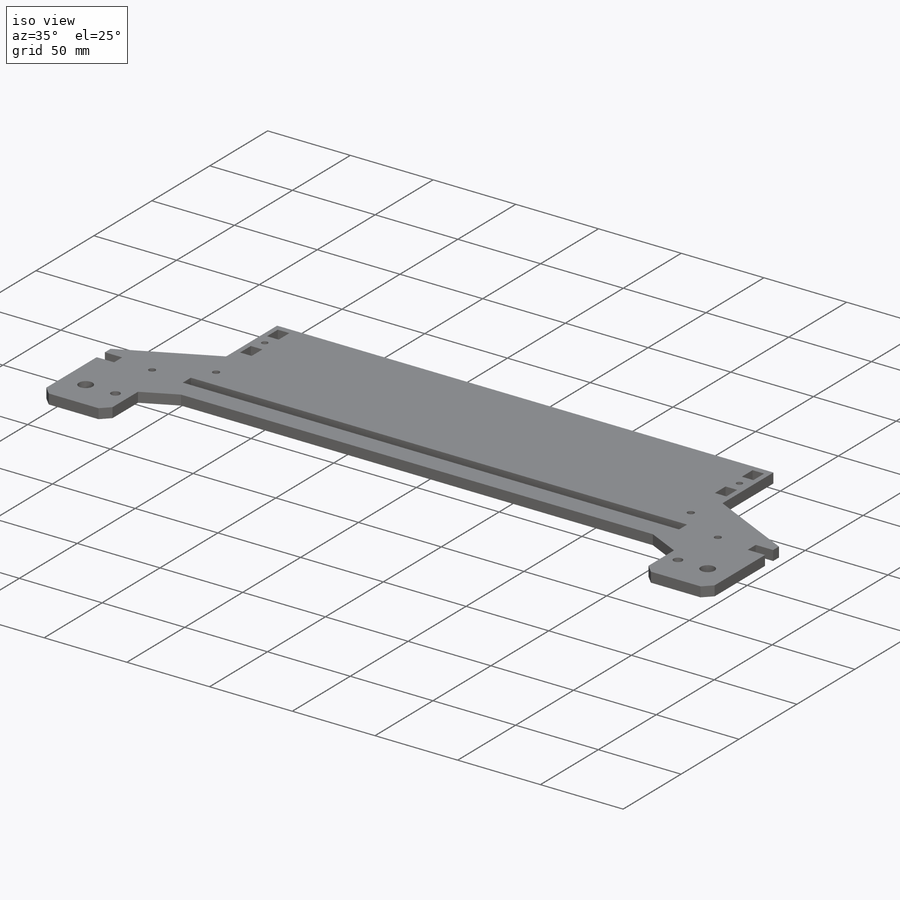
[diagram: iso view]
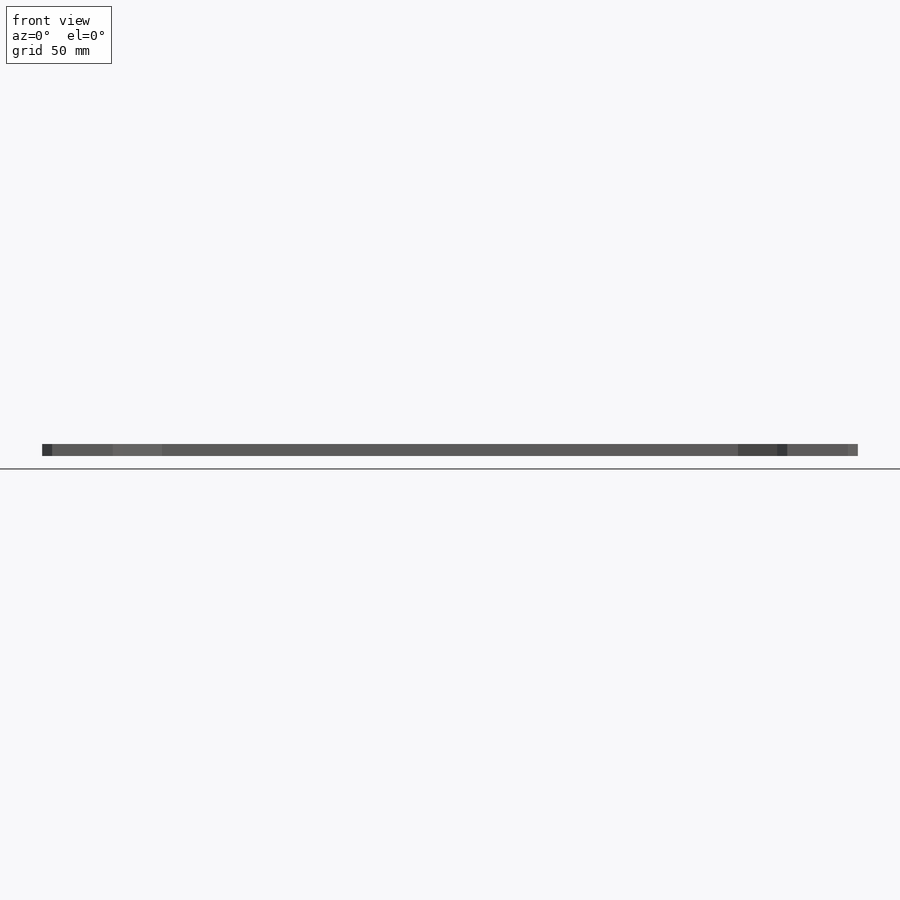
[diagram: front view]
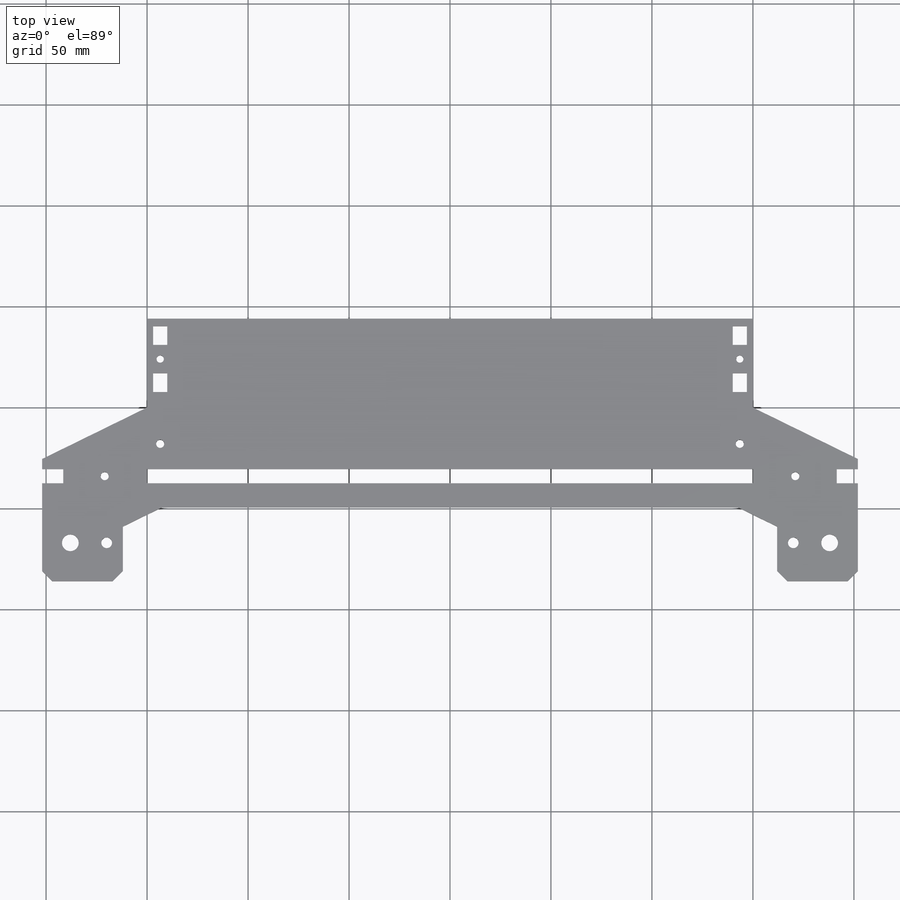
[diagram: top view]
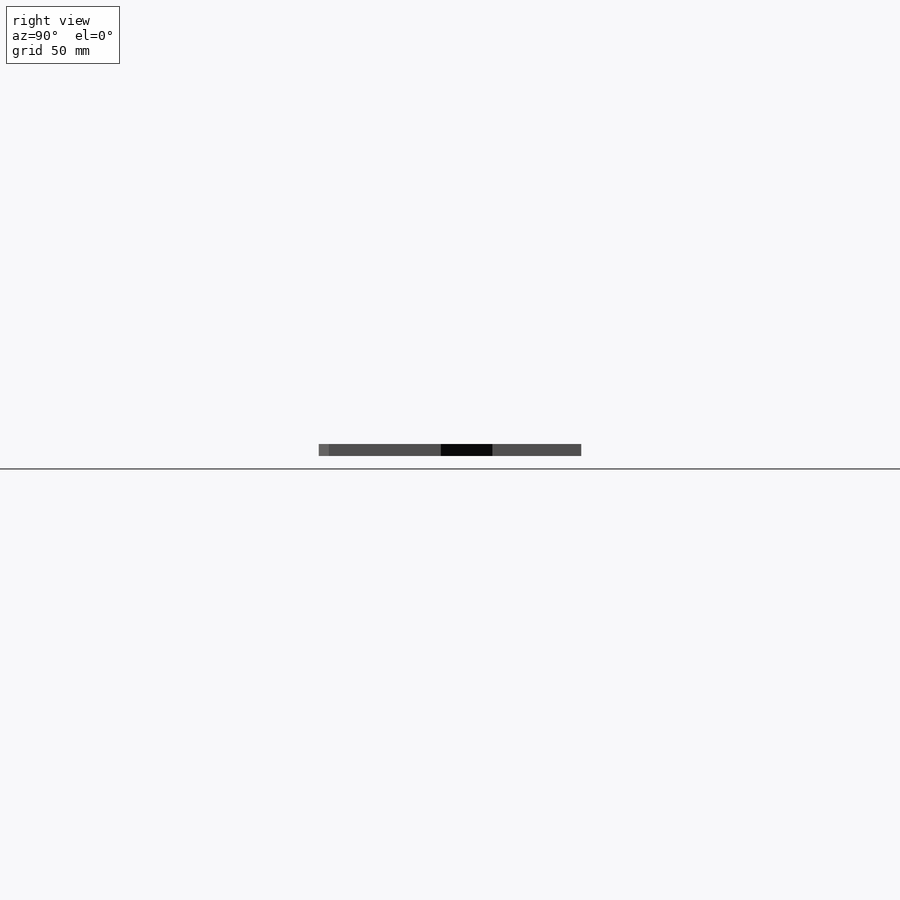
[diagram: right view]
SOLIDWORKS PART (.sldprt)
format: sldprt  version: not decoded by parser v0  size: 272,896 bytes
history: native  units: mm
features: plane x3, sketch x2, material x1, extrude x1, chamfer x1, cut_extrude x1, mirror x1 (+10 scaffold rows collapsed)
feature tree (20):
  scaffold x10  (default folders/planes/origin — collapsed)
  material  "Matériau <non spécifié>"
  plane  "Plan de face"
  plane  "Plan de dessus"
  plane  "Plan de droite"
  sketch  "Esquisse1"  dims[c1.D10=8.3mm c1.D16=4.0mm c1.D18=5.3mm c1.D21=4.0mm c1.D1=149.0mm c1.D2=86.0mm c1.D3=25.5mm c1.D4=52.5mm c1.D5=7.0mm c1.D6=5.0mm c1.D7=10.5mm c1.D8=40.0mm c1.D9=14.0mm c1.D11=19.0mm c1.D12=12.0mm c1.D13=27.0mm c1.D14=138.12mm c2.D12=140.0mm c2.D14=149.0mm c2.D15=7.0mm c2.D17=44.0mm c2.D18=149.0mm c2.D19=18.0mm c2.D20=6.5mm c2.D22=12.5mm c3.D12=404.0mm c3.D14=12.0mm c3.D21=150.0mm c3.D23=~59.573764mm c3.D4=150.0mm]
  extrude  "Boss.-Extru.1"  Depth=6mm
  chamfer  "Chanfrein1"  Distance=5mm Angle=45deg
  sketch  "Esquisse3"  dims[c1.D1=3.6mm c1.D2=9.3mm c1.D3=7.0mm c1.D4=7.0mm c2.D1=6.5mm c2.D2=20.0mm]
  cut_extrude  "Enlèv. mat.-Extru.1"  Depth=6mm
  mirror  "Symétrie1"
decode coverage: 5 of 6 modeling features carry decoded parameters
note: ~ marks probable driven/reference dimensions
note: suppression state not decoded; provenance and decode notes live in map.json
